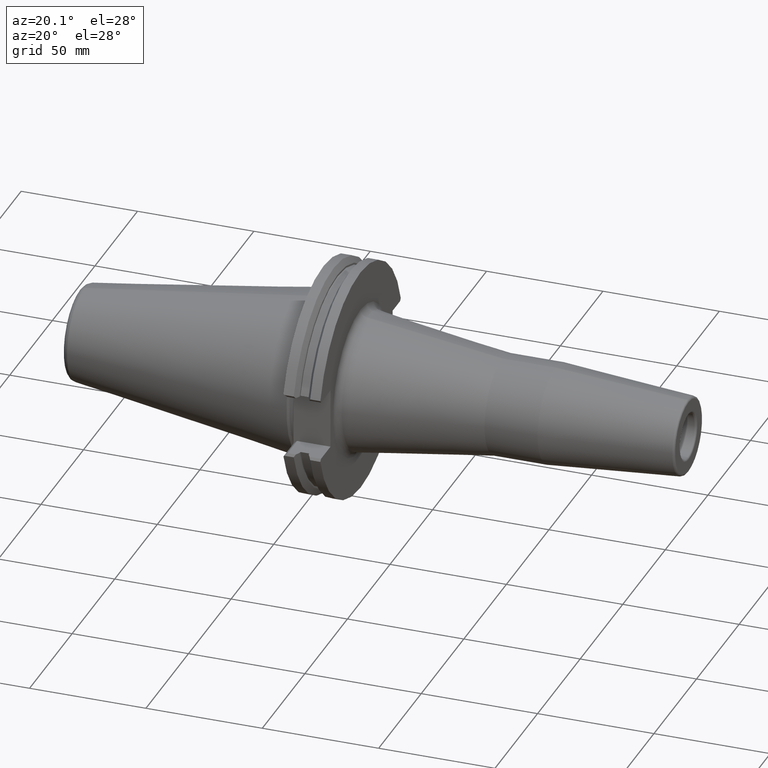
[diagram: clean part render]
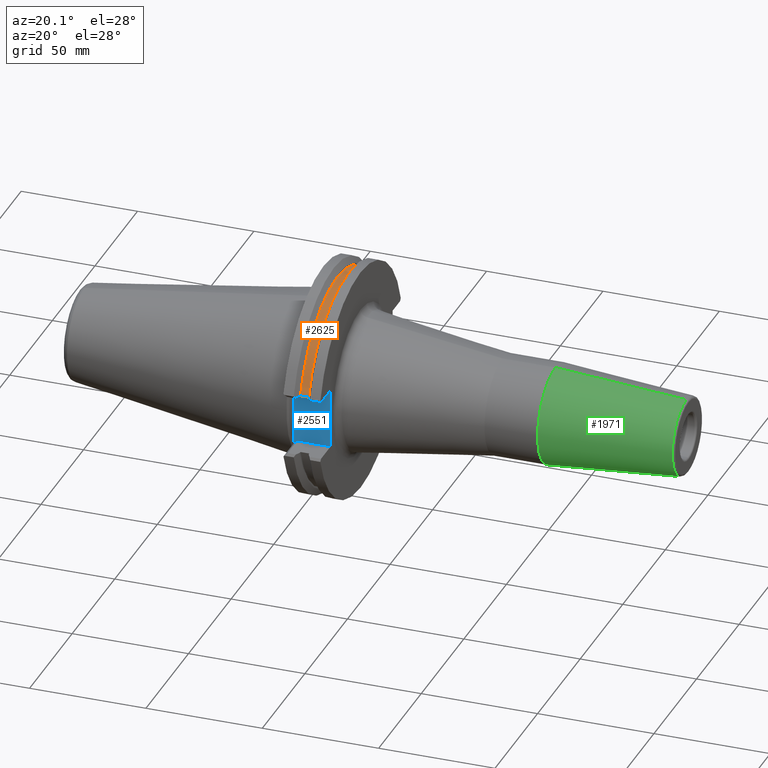
[diagram: same view with three faces highlighted in distinct colors, each labeled with its STEP entity id]
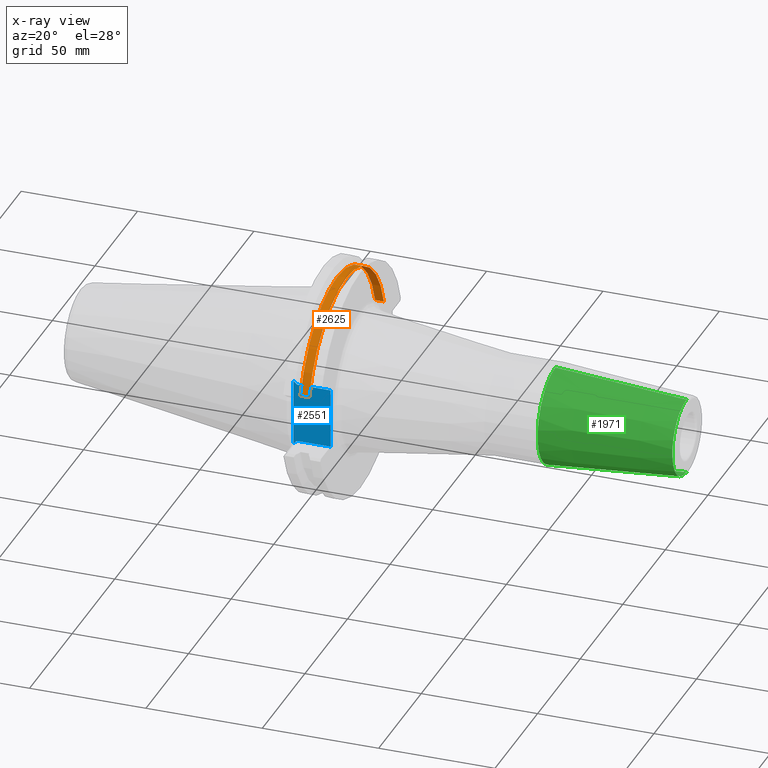
[diagram: x-ray of the same camera — body ghosted, the three highlighted faces saturated]
A machine part, auxiliary view with three faces highlighted in distinct colors.
The next image is the same camera in x-ray (body ghosted, the three faces saturated) — at least one of them is partly hidden behind the body in this view.
Their STEP definitions:

[orange] entity #2625 — the highlighted cylindrical surface (partial cylindrical patch) has radius 45.6435 mm, axis along (1, 0, 0).
#932=DIRECTION('',(1.E0,0.E0,0.E0));
#933=VECTOR('',#932,3.8E0);
#934=CARTESIAN_POINT('',(9.24E0,-4.379733544692E1,1.285E1));
#935=LINE('',#934,#933);
#936=CARTESIAN_POINT('',(9.24E0,0.E0,0.E0));
#937=DIRECTION('',(-1.E0,0.E0,0.E0));
#938=DIRECTION('',(0.E0,-9.595525200066E-1,2.815296811156E-1));
#939=AXIS2_PLACEMENT_3D('',#936,#937,#938);
#941=DIRECTION('',(1.E0,0.E0,0.E0));
#942=VECTOR('',#941,3.8E0);
#943=CARTESIAN_POINT('',(9.24E0,4.379733544692E1,1.285E1));
#944=LINE('',#943,#942);
#945=CARTESIAN_POINT('',(1.304E1,0.E0,0.E0));
#946=DIRECTION('',(1.E0,0.E0,0.E0));
#947=DIRECTION('',(0.E0,9.595525200066E-1,2.815296811156E-1));
#948=AXIS2_PLACEMENT_3D('',#945,#946,#947);
#1214=CARTESIAN_POINT('',(9.24E0,4.379733544692E1,1.285E1));
#1216=VERTEX_POINT('',#1214);
#1221=CARTESIAN_POINT('',(1.304E1,4.379733544692E1,1.285E1));
#1222=VERTEX_POINT('',#1221);
#1230=CARTESIAN_POINT('',(9.24E0,-4.379733544692E1,1.285E1));
#1232=VERTEX_POINT('',#1230);
#1237=CARTESIAN_POINT('',(1.304E1,-4.379733544692E1,1.285E1));
#1238=VERTEX_POINT('',#1237);
#2613=CARTESIAN_POINT('',(0.E0,0.E0,0.E0));
#2614=DIRECTION('',(1.E0,0.E0,0.E0));
#2615=DIRECTION('',(0.E0,0.E0,1.E0));
#2616=AXIS2_PLACEMENT_3D('',#2613,#2614,#2615);
#2617=CYLINDRICAL_SURFACE('',#2616,4.56435E1);
#2618=ORIENTED_EDGE('',*,*,#2497,.F.);
#2620=ORIENTED_EDGE('',*,*,#2619,.T.);
#2621=ORIENTED_EDGE('',*,*,#2271,.T.);
#2622=ORIENTED_EDGE('',*,*,#2464,.T.);
#2623=EDGE_LOOP('',(#2618,#2620,#2621,#2622));
#2624=FACE_OUTER_BOUND('',#2623,.F.);
#2625=ADVANCED_FACE('',(#2624),#2617,.T.);
#940=CIRCLE('',#939,4.56435E1);
#949=CIRCLE('',#948,4.56435E1);
#2271=EDGE_CURVE('',#1216,#1222,#944,.T.);
#2464=EDGE_CURVE('',#1222,#1238,#949,.T.);
#2497=EDGE_CURVE('',#1232,#1238,#935,.T.);
#2619=EDGE_CURVE('',#1232,#1216,#940,.T.);

[blue] entity #2551 — the highlighted planar face has unit normal (0, 1, 0).
#493=DIRECTION('',(0.E0,0.E0,-1.E0));
#494=VECTOR('',#493,2.57E1);
#495=CARTESIAN_POINT('',(1.905E1,-3.5306E1,1.285E1));
#496=LINE('',#495,#494);
#892=DIRECTION('',(-7.071067811865E-1,0.E0,7.071067811865E-1));
#893=VECTOR('',#892,2.121320343560E0);
#894=CARTESIAN_POINT('',(4.65E0,-3.5306E1,1.285E1));
#895=LINE('',#894,#893);
#900=DIRECTION('',(0.E0,0.E0,1.E0));
#901=VECTOR('',#900,2.87E1);
#902=CARTESIAN_POINT('',(3.15E0,-3.5306E1,-1.435E1));
#903=LINE('',#902,#901);
#904=DIRECTION('',(1.E0,0.E0,0.E0));
#905=VECTOR('',#904,1.44E1);
#906=CARTESIAN_POINT('',(4.65E0,-3.5306E1,1.285E1));
#907=LINE('',#906,#905);
#908=DIRECTION('',(-1.E0,0.E0,0.E0));
#909=VECTOR('',#908,1.44E1);
#910=CARTESIAN_POINT('',(1.905E1,-3.5306E1,-1.285E1));
#911=LINE('',#910,#909);
#924=DIRECTION('',(7.071067811865E-1,0.E0,7.071067811865E-1));
#925=VECTOR('',#924,2.121320343560E0);
#926=CARTESIAN_POINT('',(3.15E0,-3.5306E1,-1.435E1));
#927=LINE('',#926,#925);
#1047=CARTESIAN_POINT('',(1.905E1,-3.5306E1,1.285E1));
#1048=CARTESIAN_POINT('',(1.905E1,-3.5306E1,-1.285E1));
#1049=VERTEX_POINT('',#1047);
#1050=VERTEX_POINT('',#1048);
#1170=CARTESIAN_POINT('',(4.65E0,-3.5306E1,-1.285E1));
#1172=VERTEX_POINT('',#1170);
#1176=CARTESIAN_POINT('',(3.15E0,-3.5306E1,-1.435E1));
#1178=VERTEX_POINT('',#1176);
#1183=CARTESIAN_POINT('',(4.65E0,-3.5306E1,1.285E1));
#1184=VERTEX_POINT('',#1183);
#1185=CARTESIAN_POINT('',(3.15E0,-3.5306E1,1.435E1));
#1187=VERTEX_POINT('',#1185);
#2536=CARTESIAN_POINT('',(0.E0,-3.5306E1,0.E0));
#2537=DIRECTION('',(0.E0,1.E0,0.E0));
#2538=DIRECTION('',(1.E0,0.E0,0.E0));
#2539=AXIS2_PLACEMENT_3D('',#2536,#2537,#2538);
#2540=PLANE('',#2539);
#2541=ORIENTED_EDGE('',*,*,#2163,.T.);
#2542=ORIENTED_EDGE('',*,*,#2517,.F.);
#2543=ORIENTED_EDGE('',*,*,#2504,.T.);
#2544=ORIENTED_EDGE('',*,*,#2069,.T.);
#2546=ORIENTED_EDGE('',*,*,#2545,.T.);
#2548=ORIENTED_EDGE('',*,*,#2547,.F.);
#2549=EDGE_LOOP('',(#2541,#2542,#2543,#2544,#2546,#2548));
#2550=FACE_OUTER_BOUND('',#2549,.F.);
#2551=ADVANCED_FACE('',(#2550),#2540,.F.);
#2069=EDGE_CURVE('',#1049,#1050,#496,.T.);
#2163=EDGE_CURVE('',#1178,#1187,#903,.T.);
#2504=EDGE_CURVE('',#1184,#1049,#907,.T.);
#2517=EDGE_CURVE('',#1184,#1187,#895,.T.);
#2545=EDGE_CURVE('',#1050,#1172,#911,.T.);
#2547=EDGE_CURVE('',#1178,#1172,#927,.T.);

[green] entity #1971 — the highlighted conical surface has half-angle 4.5 deg.
#422=DIRECTION('',(-9.969173337331E-1,0.E0,-7.845909572785E-2));
#423=VECTOR('',#422,5.643033630266E1);
#424=CARTESIAN_POINT('',(1.590784590957E2,0.E0,-1.657252684207E1));
#425=LINE('',#424,#423);
#426=DIRECTION('',(-9.969173337331E-1,0.E0,7.845909572785E-2));
#427=VECTOR('',#426,5.643033630266E1);
#428=CARTESIAN_POINT('',(1.590784590957E2,0.E0,1.657252684207E1));
#429=LINE('',#428,#427);
#430=CARTESIAN_POINT('',(1.590784590957E2,0.E0,0.E0));
#431=DIRECTION('',(-1.E0,0.E0,0.E0));
#432=DIRECTION('',(0.E0,0.E0,-1.E0));
#433=AXIS2_PLACEMENT_3D('',#430,#431,#432);
#453=CARTESIAN_POINT('',(1.028220786872E2,0.E0,0.E0));
#454=DIRECTION('',(-1.E0,0.E0,0.E0));
#455=DIRECTION('',(0.E0,0.E0,-1.E0));
#456=AXIS2_PLACEMENT_3D('',#453,#454,#455);
#1257=CARTESIAN_POINT('',(1.590784590957E2,0.E0,-1.657252684207E1));
#1258=CARTESIAN_POINT('',(1.028220786872E2,0.E0,-2.1E1));
#1259=VERTEX_POINT('',#1257);
#1260=VERTEX_POINT('',#1258);
#1281=CARTESIAN_POINT('',(1.590784590957E2,0.E0,1.657252684207E1));
#1282=CARTESIAN_POINT('',(1.028220786872E2,0.E0,2.1E1));
#1283=VERTEX_POINT('',#1281);
#1284=VERTEX_POINT('',#1282);
#1957=CARTESIAN_POINT('',(1.309502688915E2,0.E0,0.E0));
#1958=DIRECTION('',(-1.E0,0.E0,0.E0));
#1959=DIRECTION('',(0.E0,0.E0,-1.E0));
#1960=AXIS2_PLACEMENT_3D('',#1957,#1958,#1959);
#1961=CONICAL_SURFACE('',#1960,1.878626342104E1,4.5E0);
#1963=ORIENTED_EDGE('',*,*,#1962,.T.);
#1965=ORIENTED_EDGE('',*,*,#1964,.T.);
#1967=ORIENTED_EDGE('',*,*,#1966,.F.);
#1968=ORIENTED_EDGE('',*,*,#1950,.F.);
#1969=EDGE_LOOP('',(#1963,#1965,#1967,#1968));
#1970=FACE_OUTER_BOUND('',#1969,.F.);
#1971=ADVANCED_FACE('',(#1970),#1961,.T.);
#434=CIRCLE('',#433,1.657252684207E1);
#457=CIRCLE('',#456,2.1E1);
#1950=EDGE_CURVE('',#1259,#1283,#434,.T.);
#1962=EDGE_CURVE('',#1259,#1260,#425,.T.);
#1964=EDGE_CURVE('',#1260,#1284,#457,.T.);
#1966=EDGE_CURVE('',#1283,#1284,#429,.T.);